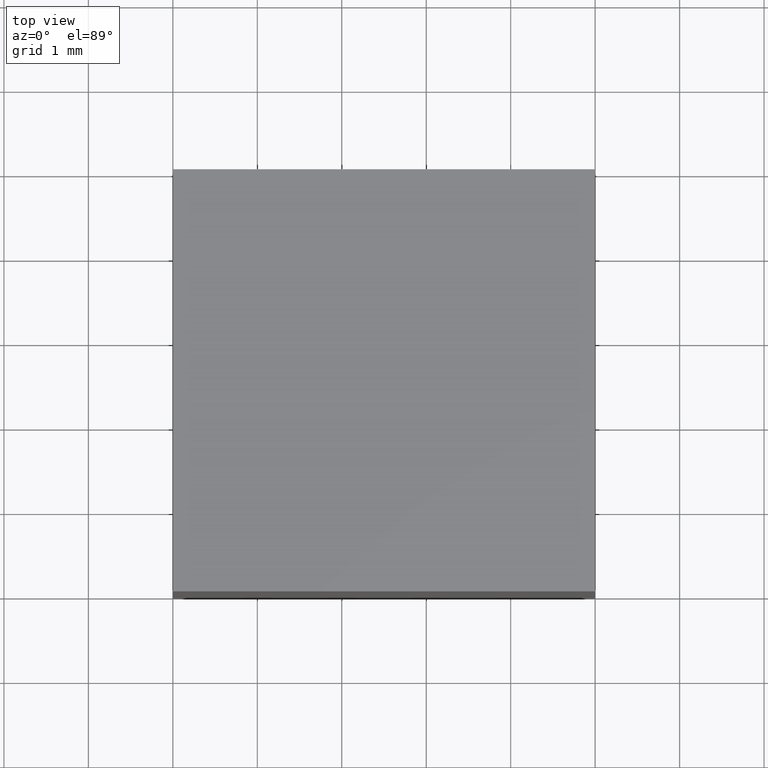
[diagram: clean part render]
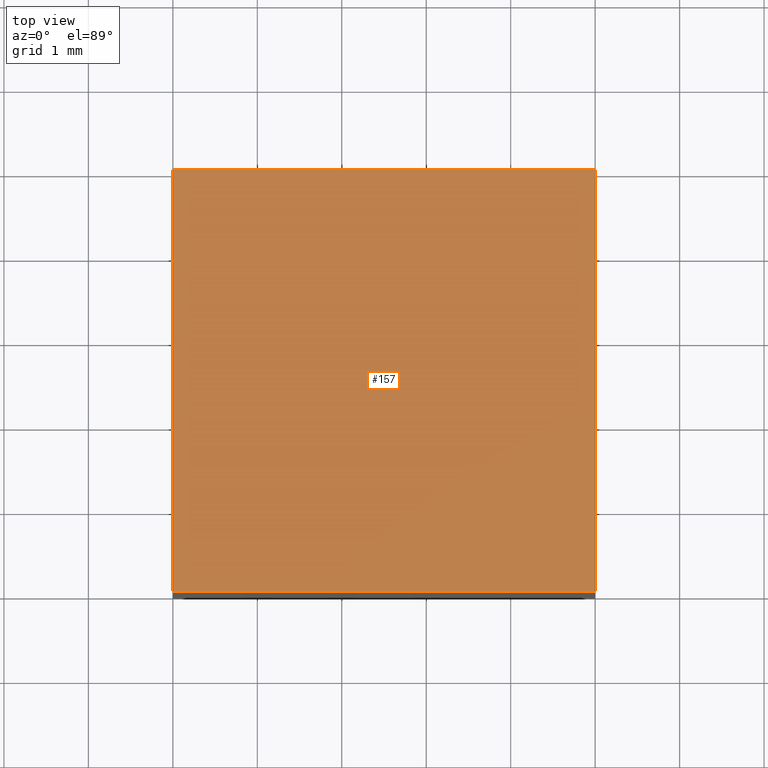
[diagram: same view with one face highlighted and labeled with its STEP entity id]
A machine part, top view. The second image highlights one B-rep face of the part: STEP entity #157.
In plain terms, the highlighted planar face has unit normal (-0, 0, 1).
Its self-contained STEP definition (entity closure, byte-faithful):
#1 = AXIS2_PLACEMENT_3D ( 'NONE', #292, #79, #125 ) ;
#5 = LINE ( 'NONE', #276, #248 ) ;
#20 = EDGE_CURVE ( 'NONE', #232, #64, #5, .T. ) ;
#24 = EDGE_CURVE ( 'NONE', #227, #69, #118, .T. ) ;
#34 = CARTESIAN_POINT ( 'NONE',  ( -5.000000000000000000, 0.0000000000000000000, 0.0000000000000000000 ) ) ;
#42 = LINE ( 'NONE', #166, #283 ) ;
#61 = VECTOR ( 'NONE', #104, 1000.000000000000000 ) ;
#64 = VERTEX_POINT ( 'NONE', #34 ) ;
#69 = VERTEX_POINT ( 'NONE', #102 ) ;
#79 = DIRECTION ( 'NONE',  ( -0.0000000000000000000, 0.0000000000000000000, 1.000000000000000000 ) ) ;
#102 = CARTESIAN_POINT ( 'NONE',  ( -5.000000000000000000, 5.000000000000000000, 0.0000000000000000000 ) ) ;
#104 = DIRECTION ( 'NONE',  ( -1.000000000000000000, -0.0000000000000000000, -0.0000000000000000000 ) ) ;
#115 = EDGE_CURVE ( 'NONE', #227, #232, #160, .T. ) ;
#118 = LINE ( 'NONE', #197, #61 ) ;
#125 = DIRECTION ( 'NONE',  ( 1.000000000000000000, 0.0000000000000000000, 0.0000000000000000000 ) ) ;
#145 = CARTESIAN_POINT ( 'NONE',  ( 0.0000000000000000000, 5.000000000000000000, 0.0000000000000000000 ) ) ;
#152 = ORIENTED_EDGE ( 'NONE', *, *, #20, .F. ) ;
#153 = CARTESIAN_POINT ( 'NONE',  ( 0.0000000000000000000, 0.0000000000000000000, 0.0000000000000000000 ) ) ;
#157 = ADVANCED_FACE ( 'NONE', ( #262 ), #240, .T. ) ;
#160 = LINE ( 'NONE', #243, #275 ) ;
#166 = CARTESIAN_POINT ( 'NONE',  ( -5.000000000000000000, 5.000000000000000000, 0.0000000000000000000 ) ) ;
#170 = DIRECTION ( 'NONE',  ( 0.0000000000000000000, -1.000000000000000000, 0.0000000000000000000 ) ) ;
#181 = EDGE_CURVE ( 'NONE', #69, #64, #42, .T. ) ;
#184 = ORIENTED_EDGE ( 'NONE', *, *, #115, .F. ) ;
#195 = ORIENTED_EDGE ( 'NONE', *, *, #181, .T. ) ;
#197 = CARTESIAN_POINT ( 'NONE',  ( -5.000000000000000000, 5.000000000000000000, 0.0000000000000000000 ) ) ;
#227 = VERTEX_POINT ( 'NONE', #145 ) ;
#228 = ORIENTED_EDGE ( 'NONE', *, *, #24, .T. ) ;
#232 = VERTEX_POINT ( 'NONE', #153 ) ;
#235 = DIRECTION ( 'NONE',  ( 0.0000000000000000000, -1.000000000000000000, 0.0000000000000000000 ) ) ;
#240 = PLANE ( 'NONE',  #1 ) ;
#243 = CARTESIAN_POINT ( 'NONE',  ( 0.0000000000000000000, 5.000000000000000000, 0.0000000000000000000 ) ) ;
#248 = VECTOR ( 'NONE', #268, 1000.000000000000000 ) ;
#252 = EDGE_LOOP ( 'NONE', ( #152, #184, #228, #195 ) ) ;
#262 = FACE_OUTER_BOUND ( 'NONE', #252, .T. ) ;
#268 = DIRECTION ( 'NONE',  ( -1.000000000000000000, -0.0000000000000000000, -0.0000000000000000000 ) ) ;
#275 = VECTOR ( 'NONE', #170, 1000.000000000000000 ) ;
#276 = CARTESIAN_POINT ( 'NONE',  ( -5.000000000000000000, 0.0000000000000000000, 0.0000000000000000000 ) ) ;
#283 = VECTOR ( 'NONE', #235, 1000.000000000000000 ) ;
#292 = CARTESIAN_POINT ( 'NONE',  ( -5.000000000000000000, 5.000000000000000000, 0.0000000000000000000 ) ) ;